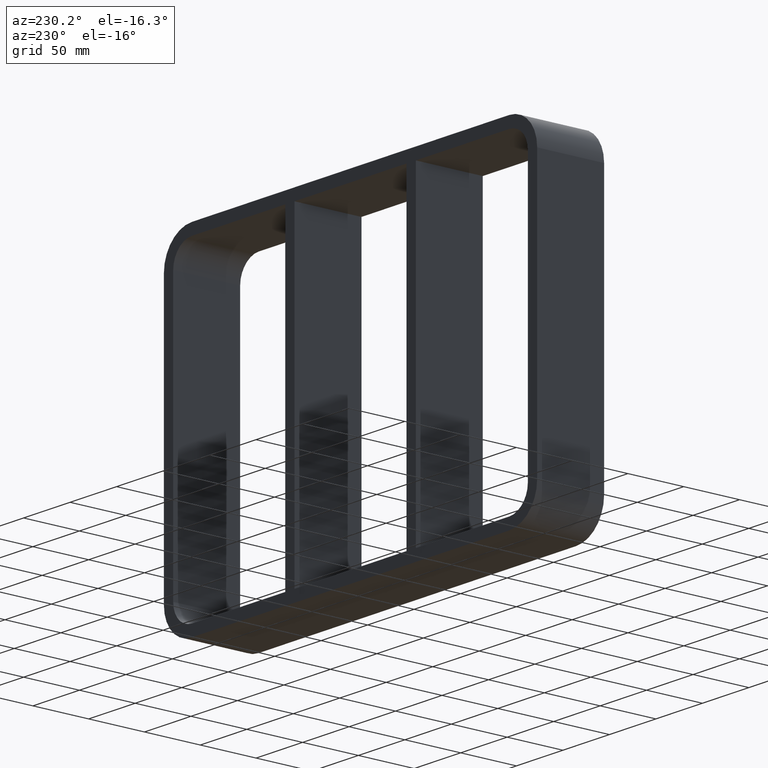
[diagram: clean part render]
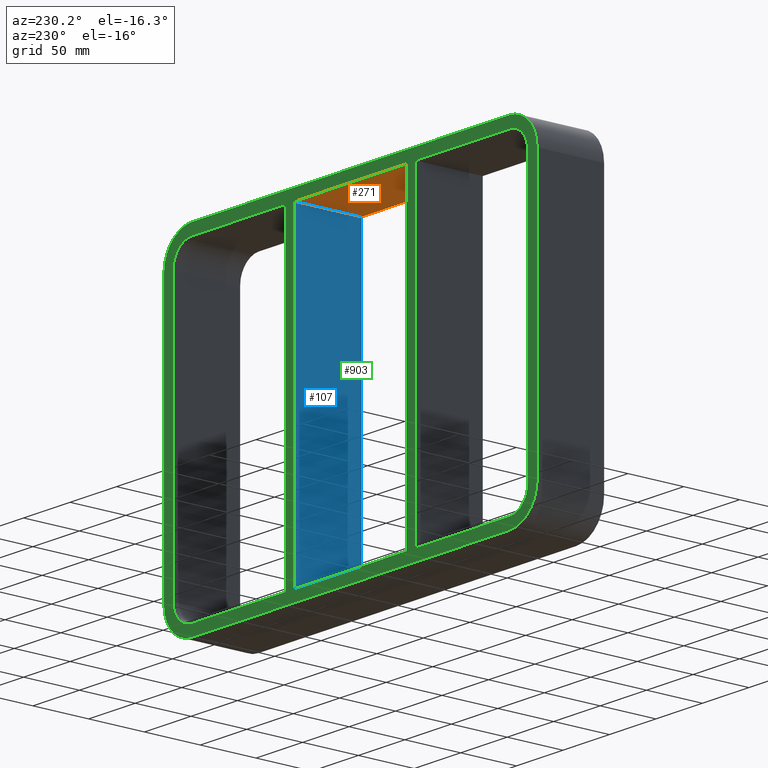
[diagram: same view with three faces highlighted in distinct colors, each labeled with its STEP entity id]
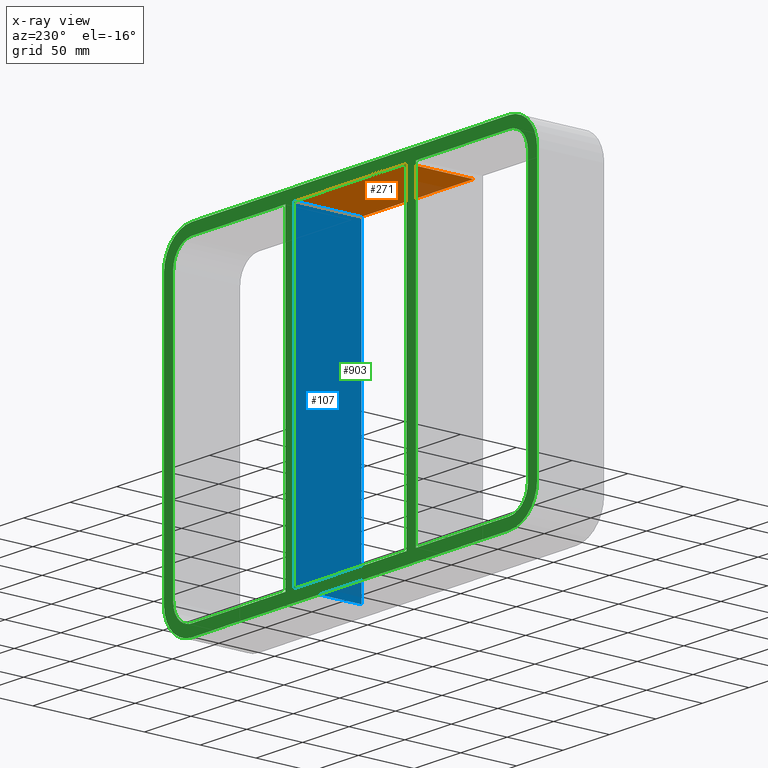
[diagram: x-ray of the same camera — body ghosted, the three highlighted faces saturated]
A machine part, auxiliary view with three faces highlighted in distinct colors.
The next image is the same camera in x-ray (body ghosted, the three faces saturated) — at least one of them is partly hidden behind the body in this view.
Their STEP definitions:

[orange] entity #271 — the highlighted planar face has unit normal (0, 0, 1).
#75=CARTESIAN_POINT('',(60.2499999999986,-3.0,139.0));
#76=VERTEX_POINT('',#75);
#83=CARTESIAN_POINT('',(60.2499999999986,57.0,139.0));
#84=VERTEX_POINT('',#83);
#85=CARTESIAN_POINT('',(60.2499999999986,57.000000000000007,139.0));
#86=DIRECTION('',(0.0,-1.0,0.0));
#87=VECTOR('',#86,60.000000000000007);
#88=LINE('',#85,#87);
#89=EDGE_CURVE('',#84,#76,#88,.T.);
#241=CARTESIAN_POINT('',(-190.75000000000003,0.0,139.0));
#242=DIRECTION('',(0.0,0.0,1.0));
#243=DIRECTION('',(1.0,0.0,0.0));
#244=AXIS2_PLACEMENT_3D('',#241,#242,#243);
#245=PLANE('',#244);
#246=ORIENTED_EDGE('',*,*,#89,.T.);
#247=CARTESIAN_POINT('',(-60.249999999996362,-3.0,139.0));
#248=VERTEX_POINT('',#247);
#249=CARTESIAN_POINT('',(-60.249999999996362,-3.0,139.0));
#250=DIRECTION('',(1.0,0.0,0.0));
#251=VECTOR('',#250,120.49999999999496);
#252=LINE('',#249,#251);
#253=EDGE_CURVE('',#248,#76,#252,.T.);
#254=ORIENTED_EDGE('',*,*,#253,.F.);
#255=CARTESIAN_POINT('',(-60.249999999996362,57.0,139.0));
#256=VERTEX_POINT('',#255);
#257=CARTESIAN_POINT('',(-60.249999999996362,-3.0,139.0));
#258=DIRECTION('',(0.0,1.0,0.0));
#259=VECTOR('',#258,60.000000000000007);
#260=LINE('',#257,#259);
#261=EDGE_CURVE('',#248,#256,#260,.T.);
#262=ORIENTED_EDGE('',*,*,#261,.T.);
#263=CARTESIAN_POINT('',(60.249999999998593,57.0,139.0));
#264=DIRECTION('',(-1.0,0.0,0.0));
#265=VECTOR('',#264,120.49999999999496);
#266=LINE('',#263,#265);
#267=EDGE_CURVE('',#84,#256,#266,.T.);
#268=ORIENTED_EDGE('',*,*,#267,.F.);
#269=EDGE_LOOP('',(#246,#254,#262,#268));
#270=FACE_OUTER_BOUND('',#269,.T.);
#271=ADVANCED_FACE('',(#270),#245,.F.);

[blue] entity #107 — the highlighted planar face has unit normal (-1, 0, 0).
#68=CARTESIAN_POINT('',(60.249999999998636,-3.0,-139.0));
#69=DIRECTION('',(-1.0,0.0,0.0));
#70=DIRECTION('',(0.0,0.0,1.0));
#71=AXIS2_PLACEMENT_3D('',#68,#69,#70);
#72=PLANE('',#71);
#73=CARTESIAN_POINT('',(60.249999999998636,-3.0,-139.0));
#74=VERTEX_POINT('',#73);
#75=CARTESIAN_POINT('',(60.2499999999986,-3.0,139.0));
#76=VERTEX_POINT('',#75);
#77=CARTESIAN_POINT('',(60.249999999998636,-3.0,-139.0));
#78=DIRECTION('',(0.0,0.0,1.0));
#79=VECTOR('',#78,278.0);
#80=LINE('',#77,#79);
#81=EDGE_CURVE('',#74,#76,#80,.T.);
#82=ORIENTED_EDGE('',*,*,#81,.T.);
#83=CARTESIAN_POINT('',(60.2499999999986,57.0,139.0));
#84=VERTEX_POINT('',#83);
#85=CARTESIAN_POINT('',(60.2499999999986,57.000000000000007,139.0));
#86=DIRECTION('',(0.0,-1.0,0.0));
#87=VECTOR('',#86,60.000000000000007);
#88=LINE('',#85,#87);
#89=EDGE_CURVE('',#84,#76,#88,.T.);
#90=ORIENTED_EDGE('',*,*,#89,.F.);
#91=CARTESIAN_POINT('',(60.249999999998636,57.0,-139.0));
#92=VERTEX_POINT('',#91);
#93=CARTESIAN_POINT('',(60.249999999998636,57.0,-139.0));
#94=DIRECTION('',(0.0,0.0,1.0));
#95=VECTOR('',#94,278.0);
#96=LINE('',#93,#95);
#97=EDGE_CURVE('',#92,#84,#96,.T.);
#98=ORIENTED_EDGE('',*,*,#97,.F.);
#99=CARTESIAN_POINT('',(60.249999999998636,-3.0,-139.0));
#100=DIRECTION('',(0.0,1.0,0.0));
#101=VECTOR('',#100,60.000000000000007);
#102=LINE('',#99,#101);
#103=EDGE_CURVE('',#74,#92,#102,.T.);
#104=ORIENTED_EDGE('',*,*,#103,.F.);
#105=EDGE_LOOP('',(#82,#90,#98,#104));
#106=FACE_OUTER_BOUND('',#105,.T.);
#107=ADVANCED_FACE('',(#106),#72,.T.);

[green] entity #903 — the highlighted planar face has unit normal (0, 1, 0).
#83=CARTESIAN_POINT('',(60.2499999999986,57.0,139.0));
#84=VERTEX_POINT('',#83);
#91=CARTESIAN_POINT('',(60.249999999998636,57.0,-139.0));
#92=VERTEX_POINT('',#91);
#93=CARTESIAN_POINT('',(60.249999999998636,57.0,-139.0));
#94=DIRECTION('',(0.0,0.0,1.0));
#95=VECTOR('',#94,278.0);
#96=LINE('',#93,#95);
#97=EDGE_CURVE('',#92,#84,#96,.T.);
#123=CARTESIAN_POINT('',(70.250000000003638,57.0,-138.9999999999842));
#124=VERTEX_POINT('',#123);
#131=CARTESIAN_POINT('',(70.250000000003638,57.0,139.0));
#132=VERTEX_POINT('',#131);
#133=CARTESIAN_POINT('',(70.250000000003638,57.0,139.0));
#134=DIRECTION('',(0.0,0.0,-1.0));
#135=VECTOR('',#134,277.9999999999842);
#136=LINE('',#133,#135);
#137=EDGE_CURVE('',#132,#124,#136,.T.);
#154=CARTESIAN_POINT('',(-60.249999999996362,57.0,-138.9999999999842));
#155=VERTEX_POINT('',#154);
#156=CARTESIAN_POINT('',(-60.249999999996362,57.0,-139.0));
#157=DIRECTION('',(1.0,0.0,0.0));
#158=VECTOR('',#157,120.499999999995);
#159=LINE('',#156,#158);
#160=EDGE_CURVE('',#155,#92,#159,.T.);
#193=CARTESIAN_POINT('',(170.75,57.0,-139.0));
#194=VERTEX_POINT('',#193);
#201=CARTESIAN_POINT('',(70.250000000003652,57.0,-139.0));
#202=DIRECTION('',(1.0,0.0,0.0));
#203=VECTOR('',#202,100.49999999999635);
#204=LINE('',#201,#203);
#205=EDGE_CURVE('',#124,#194,#204,.T.);
#216=CARTESIAN_POINT('',(170.75000000000003,57.0,139.0));
#217=VERTEX_POINT('',#216);
#218=CARTESIAN_POINT('',(170.75000000000006,57.0,139.0));
#219=DIRECTION('',(-1.0,0.0,0.0));
#220=VECTOR('',#219,100.4999999999964);
#221=LINE('',#218,#220);
#222=EDGE_CURVE('',#217,#132,#221,.T.);
#255=CARTESIAN_POINT('',(-60.249999999996362,57.0,139.0));
#256=VERTEX_POINT('',#255);
#263=CARTESIAN_POINT('',(60.249999999998593,57.0,139.0));
#264=DIRECTION('',(-1.0,0.0,0.0));
#265=VECTOR('',#264,120.49999999999496);
#266=LINE('',#263,#265);
#267=EDGE_CURVE('',#84,#256,#266,.T.);
#287=CARTESIAN_POINT('',(-70.250000000001407,57.0,139.0));
#288=VERTEX_POINT('',#287);
#295=CARTESIAN_POINT('',(-70.250000000001364,57.0,-139.0));
#296=VERTEX_POINT('',#295);
#297=CARTESIAN_POINT('',(-70.250000000001364,57.0,-139.0));
#298=DIRECTION('',(0.0,0.0,1.0));
#299=VECTOR('',#298,278.0);
#300=LINE('',#297,#299);
#301=EDGE_CURVE('',#296,#288,#300,.T.);
#324=CARTESIAN_POINT('',(-60.249999999996362,57.0,139.0));
#325=DIRECTION('',(0.0,0.0,-1.0));
#326=VECTOR('',#325,277.9999999999842);
#327=LINE('',#324,#326);
#328=EDGE_CURVE('',#256,#155,#327,.T.);
#340=CARTESIAN_POINT('',(-170.75000000000003,57.0,-139.0));
#341=VERTEX_POINT('',#340);
#342=CARTESIAN_POINT('',(-170.75000000000006,57.0,-139.0));
#343=DIRECTION('',(1.0,0.0,0.0));
#344=VECTOR('',#343,100.49999999999869);
#345=LINE('',#342,#344);
#346=EDGE_CURVE('',#341,#296,#345,.T.);
#379=CARTESIAN_POINT('',(-170.75000000000003,57.0,139.0));
#380=VERTEX_POINT('',#379);
#387=CARTESIAN_POINT('',(-70.250000000001407,57.0,139.0));
#388=DIRECTION('',(-1.0,0.0,0.0));
#389=VECTOR('',#388,100.49999999999862);
#390=LINE('',#387,#389);
#391=EDGE_CURVE('',#288,#380,#390,.T.);
#401=CARTESIAN_POINT('',(170.75000000000003,57.0,-149.0));
#402=VERTEX_POINT('',#401);
#403=CARTESIAN_POINT('',(200.75000000000003,57.0,-118.99999999999999));
#404=VERTEX_POINT('',#403);
#405=CARTESIAN_POINT('',(170.75000000000003,57.0,-118.99999999999999));
#406=DIRECTION('',(0.0,-1.0,0.0));
#407=DIRECTION('',(0.707106781186547,0.0,-0.707106781186547));
#408=AXIS2_PLACEMENT_3D('',#405,#406,#407);
#409=CIRCLE('',#408,30.0);
#410=EDGE_CURVE('',#402,#404,#409,.T.);
#574=CARTESIAN_POINT('',(200.75000000000003,57.0,118.99999999999999));
#575=VERTEX_POINT('',#574);
#576=CARTESIAN_POINT('',(200.75000000000003,57.0,119.0));
#577=DIRECTION('',(0.0,0.0,-1.0));
#578=VECTOR('',#577,238.0);
#579=LINE('',#576,#578);
#580=EDGE_CURVE('',#575,#404,#579,.T.);
#599=CARTESIAN_POINT('',(170.75000000000003,57.0,149.0));
#600=VERTEX_POINT('',#599);
#601=CARTESIAN_POINT('',(170.75000000000003,57.0,118.99999999999999));
#602=DIRECTION('',(0.0,-1.0,0.0));
#603=DIRECTION('',(0.707106781186547,0.0,0.707106781186547));
#604=AXIS2_PLACEMENT_3D('',#601,#602,#603);
#605=CIRCLE('',#604,30.0);
#606=EDGE_CURVE('',#575,#600,#605,.T.);
#622=CARTESIAN_POINT('',(-200.75000000000003,57.0,-118.99999999999999));
#623=VERTEX_POINT('',#622);
#624=CARTESIAN_POINT('',(-170.75000000000003,57.0,-149.0));
#625=VERTEX_POINT('',#624);
#626=CARTESIAN_POINT('',(-170.75000000000003,57.0,-118.99999999999999));
#627=DIRECTION('',(0.0,-1.0,0.0));
#628=DIRECTION('',(-0.707106781186547,0.0,-0.707106781186547));
#629=AXIS2_PLACEMENT_3D('',#626,#627,#628);
#630=CIRCLE('',#629,30.0);
#631=EDGE_CURVE('',#623,#625,#630,.T.);
#656=CARTESIAN_POINT('',(-200.75000000000003,57.0,118.99999999999999));
#657=VERTEX_POINT('',#656);
#664=CARTESIAN_POINT('',(-200.75000000000003,57.0,-119.0));
#665=DIRECTION('',(0.0,0.0,1.0));
#666=VECTOR('',#665,238.0);
#667=LINE('',#664,#666);
#668=EDGE_CURVE('',#623,#657,#667,.T.);
#678=CARTESIAN_POINT('',(-170.75000000000003,57.0,149.0));
#679=VERTEX_POINT('',#678);
#680=CARTESIAN_POINT('',(-170.75000000000003,57.0,118.99999999999999));
#681=DIRECTION('',(0.0,-1.0,0.0));
#682=DIRECTION('',(-0.707106781186547,0.0,0.707106781186547));
#683=AXIS2_PLACEMENT_3D('',#680,#681,#682);
#684=CIRCLE('',#683,30.0);
#685=EDGE_CURVE('',#679,#657,#684,.T.);
#704=CARTESIAN_POINT('',(-170.75000000000003,57.0,149.0));
#705=DIRECTION('',(1.0,0.0,0.0));
#706=VECTOR('',#705,341.50000000000006);
#707=LINE('',#704,#706);
#708=EDGE_CURVE('',#679,#600,#707,.T.);
#721=CARTESIAN_POINT('',(-190.75000000000003,57.0,118.99999999999999));
#722=VERTEX_POINT('',#721);
#729=CARTESIAN_POINT('',(-170.75000000000003,57.0,118.99999999999999));
#730=DIRECTION('',(0.0,1.0,0.0));
#731=DIRECTION('',(-0.707106781186547,0.0,0.707106781186547));
#732=AXIS2_PLACEMENT_3D('',#729,#730,#731);
#733=CIRCLE('',#732,19.999999999999996);
#734=EDGE_CURVE('',#722,#380,#733,.T.);
#747=CARTESIAN_POINT('',(-190.75000000000003,57.0,-118.99999999999999));
#748=VERTEX_POINT('',#747);
#755=CARTESIAN_POINT('',(-190.75000000000003,57.0,118.99999999999997));
#756=DIRECTION('',(0.0,0.0,-1.0));
#757=VECTOR('',#756,237.99999999999997);
#758=LINE('',#755,#757);
#759=EDGE_CURVE('',#722,#748,#758,.T.);
#771=CARTESIAN_POINT('',(190.75,57.0,118.99999999999999));
#772=VERTEX_POINT('',#771);
#773=CARTESIAN_POINT('',(170.75000000000003,57.0,118.99999999999999));
#774=DIRECTION('',(0.0,1.0,0.0));
#775=DIRECTION('',(0.707106781186547,0.0,0.707106781186547));
#776=AXIS2_PLACEMENT_3D('',#773,#774,#775);
#777=CIRCLE('',#776,19.999999999999996);
#778=EDGE_CURVE('',#217,#772,#777,.T.);
#796=CARTESIAN_POINT('',(-170.75000000000003,57.0,-118.99999999999999));
#797=DIRECTION('',(0.0,1.0,0.0));
#798=DIRECTION('',(-0.707106781186547,0.0,-0.707106781186547));
#799=AXIS2_PLACEMENT_3D('',#796,#797,#798);
#800=CIRCLE('',#799,19.999999999999996);
#801=EDGE_CURVE('',#341,#748,#800,.T.);
#812=CARTESIAN_POINT('',(190.75,57.0,-118.99999999999999));
#813=VERTEX_POINT('',#812);
#814=CARTESIAN_POINT('',(170.75,57.0,-118.99999999999999));
#815=DIRECTION('',(0.0,1.0,0.0));
#816=DIRECTION('',(0.707106781186547,0.0,-0.707106781186547));
#817=AXIS2_PLACEMENT_3D('',#814,#815,#816);
#818=CIRCLE('',#817,19.999999999999996);
#819=EDGE_CURVE('',#813,#194,#818,.T.);
#838=CARTESIAN_POINT('',(190.75,57.0,-118.99999999999997));
#839=DIRECTION('',(0.0,0.0,1.0));
#840=VECTOR('',#839,237.99999999999997);
#841=LINE('',#838,#840);
#842=EDGE_CURVE('',#813,#772,#841,.T.);
#857=CARTESIAN_POINT('',(170.75000000000003,57.0,-149.0));
#858=DIRECTION('',(-1.0,0.0,0.0));
#859=VECTOR('',#858,341.50000000000006);
#860=LINE('',#857,#859);
#861=EDGE_CURVE('',#402,#625,#860,.T.);
#866=CARTESIAN_POINT('',(0.0,57.0,0.0));
#867=DIRECTION('',(0.0,1.0,0.0));
#868=DIRECTION('',(0.0,0.0,1.0));
#869=AXIS2_PLACEMENT_3D('',#866,#867,#868);
#870=PLANE('',#869);
#871=ORIENTED_EDGE('',*,*,#410,.F.);
#872=ORIENTED_EDGE('',*,*,#861,.T.);
#873=ORIENTED_EDGE('',*,*,#631,.F.);
#874=ORIENTED_EDGE('',*,*,#668,.T.);
#875=ORIENTED_EDGE('',*,*,#685,.F.);
#876=ORIENTED_EDGE('',*,*,#708,.T.);
#877=ORIENTED_EDGE('',*,*,#606,.F.);
#878=ORIENTED_EDGE('',*,*,#580,.T.);
#879=EDGE_LOOP('',(#871,#872,#873,#874,#875,#876,#877,#878));
#880=FACE_OUTER_BOUND('',#879,.T.);
#881=ORIENTED_EDGE('',*,*,#205,.T.);
#882=ORIENTED_EDGE('',*,*,#819,.F.);
#883=ORIENTED_EDGE('',*,*,#842,.T.);
#884=ORIENTED_EDGE('',*,*,#778,.F.);
#885=ORIENTED_EDGE('',*,*,#222,.T.);
#886=ORIENTED_EDGE('',*,*,#137,.T.);
#887=EDGE_LOOP('',(#881,#882,#883,#884,#885,#886));
#888=FACE_BOUND('',#887,.T.);
#889=ORIENTED_EDGE('',*,*,#97,.T.);
#890=ORIENTED_EDGE('',*,*,#267,.T.);
#891=ORIENTED_EDGE('',*,*,#328,.T.);
#892=ORIENTED_EDGE('',*,*,#160,.T.);
#893=EDGE_LOOP('',(#889,#890,#891,#892));
#894=FACE_BOUND('',#893,.T.);
#895=ORIENTED_EDGE('',*,*,#301,.T.);
#896=ORIENTED_EDGE('',*,*,#391,.T.);
#897=ORIENTED_EDGE('',*,*,#734,.F.);
#898=ORIENTED_EDGE('',*,*,#759,.T.);
#899=ORIENTED_EDGE('',*,*,#801,.F.);
#900=ORIENTED_EDGE('',*,*,#346,.T.);
#901=EDGE_LOOP('',(#895,#896,#897,#898,#899,#900));
#902=FACE_BOUND('',#901,.T.);
#903=ADVANCED_FACE('',(#880,#888,#894,#902),#870,.T.);